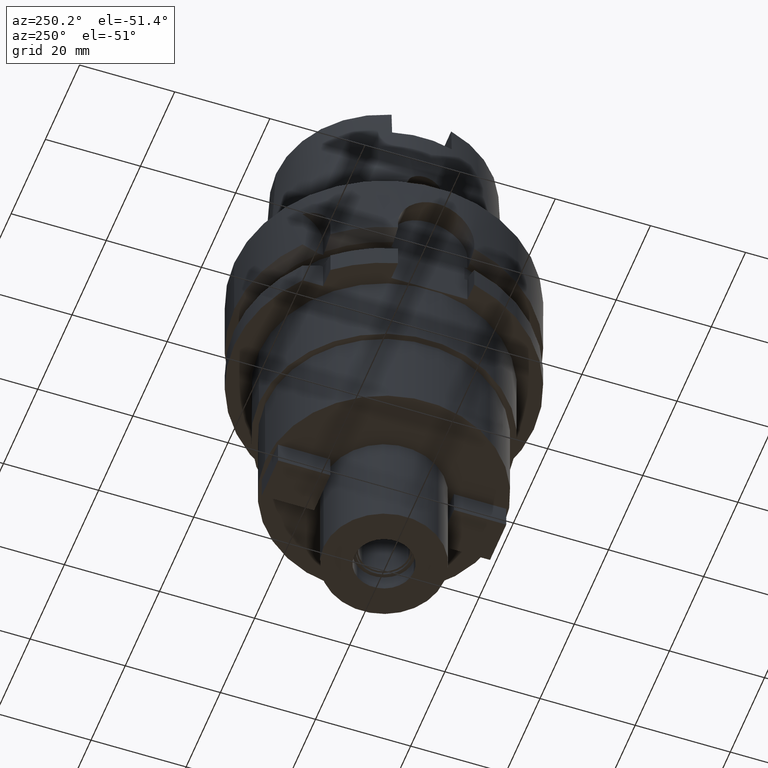
[diagram: clean part render]
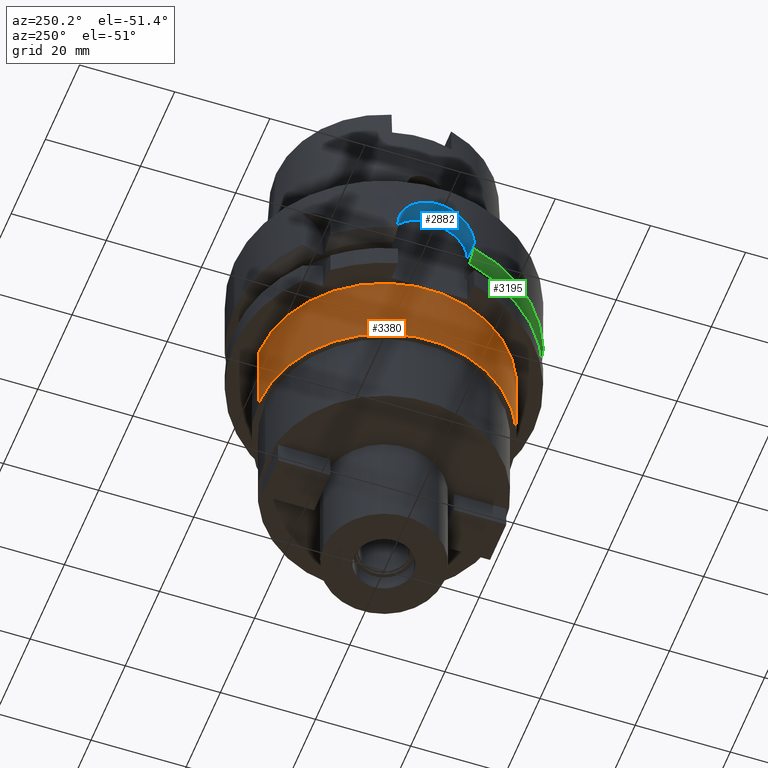
[diagram: same view with three faces highlighted in distinct colors, each labeled with its STEP entity id]
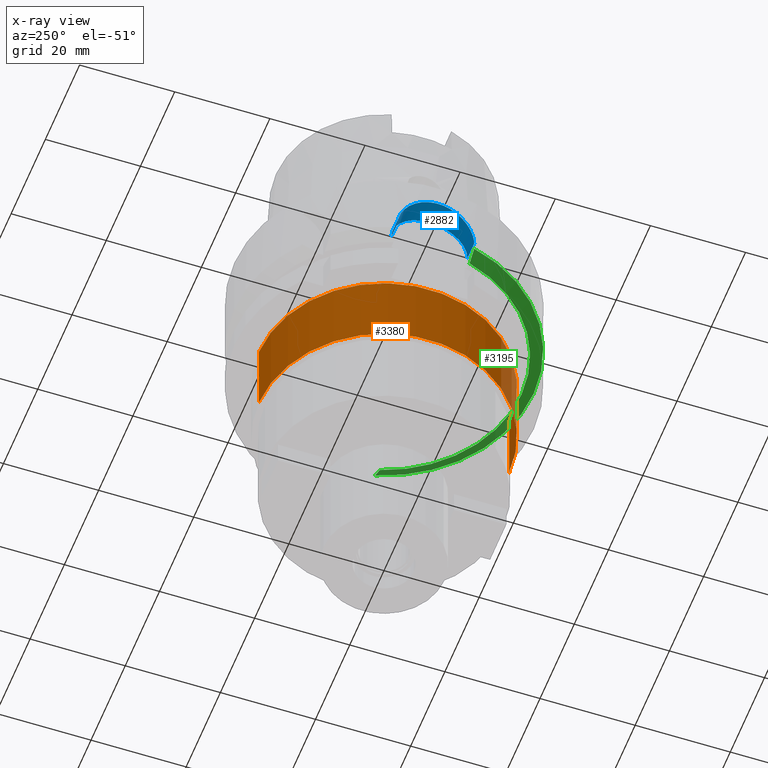
[diagram: x-ray of the same camera — body ghosted, the three highlighted faces saturated]
A machine part, auxiliary view with three faces highlighted in distinct colors.
The next image is the same camera in x-ray (body ghosted, the three faces saturated) — at least one of them is partly hidden behind the body in this view.
Their STEP definitions:

[orange] entity #3380 — the highlighted cylindrical surface (partial cylindrical patch) has radius 26.3 mm, axis along (0, 0, 1).
#764=CARTESIAN_POINT('',(0.E0,0.E0,-2.6E1));
#765=DIRECTION('',(0.E0,0.E0,-1.E0));
#766=DIRECTION('',(0.E0,-1.E0,0.E0));
#767=AXIS2_PLACEMENT_3D('',#764,#765,#766);
#1304=DIRECTION('',(0.E0,0.E0,-1.E0));
#1305=VECTOR('',#1304,1.6E1);
#1306=CARTESIAN_POINT('',(0.E0,-2.63E1,-2.6E1));
#1307=LINE('',#1306,#1305);
#1311=DIRECTION('',(0.E0,0.E0,-1.E0));
#1312=VECTOR('',#1311,1.6E1);
#1313=CARTESIAN_POINT('',(0.E0,2.63E1,-2.6E1));
#1314=LINE('',#1313,#1312);
#1326=CARTESIAN_POINT('',(0.E0,0.E0,-4.2E1));
#1327=DIRECTION('',(0.E0,0.E0,1.E0));
#1328=DIRECTION('',(0.E0,1.E0,0.E0));
#1329=AXIS2_PLACEMENT_3D('',#1326,#1327,#1328);
#2330=CARTESIAN_POINT('',(0.E0,-2.63E1,-4.2E1));
#2331=CARTESIAN_POINT('',(0.E0,2.63E1,-4.2E1));
#2332=VERTEX_POINT('',#2330);
#2333=VERTEX_POINT('',#2331);
#2334=CARTESIAN_POINT('',(0.E0,2.63E1,-2.6E1));
#2335=VERTEX_POINT('',#2334);
#2336=CARTESIAN_POINT('',(0.E0,-2.63E1,-2.6E1));
#2337=VERTEX_POINT('',#2336);
#3366=CARTESIAN_POINT('',(0.E0,0.E0,-8.77E1));
#3367=DIRECTION('',(0.E0,0.E0,1.E0));
#3368=DIRECTION('',(0.E0,1.E0,0.E0));
#3369=AXIS2_PLACEMENT_3D('',#3366,#3367,#3368);
#3370=CYLINDRICAL_SURFACE('',#3369,2.63E1);
#3372=ORIENTED_EDGE('',*,*,#3371,.F.);
#3373=ORIENTED_EDGE('',*,*,#2982,.F.);
#3375=ORIENTED_EDGE('',*,*,#3374,.T.);
#3377=ORIENTED_EDGE('',*,*,#3376,.F.);
#3378=EDGE_LOOP('',(#3372,#3373,#3375,#3377));
#3379=FACE_OUTER_BOUND('',#3378,.F.);
#768=CIRCLE('',#767,2.63E1);
#1330=CIRCLE('',#1329,2.63E1);
#2982=EDGE_CURVE('',#2337,#2335,#768,.T.);
#3371=EDGE_CURVE('',#2335,#2333,#1314,.T.);
#3374=EDGE_CURVE('',#2337,#2332,#1307,.T.);
#3376=EDGE_CURVE('',#2333,#2332,#1330,.T.);
#3380=ADVANCED_FACE('',(#3379),#3370,.T.);

[blue] entity #2882 — the highlighted cylindrical surface (partial cylindrical patch) has radius 8 mm, axis along (1, 0, 0).
#570=CARTESIAN_POINT('',(-3.046719547316E1,8.E0,-1.3E1));
#571=CARTESIAN_POINT('',(-3.046719547316E1,8.E0,-1.245224003607E1));
#572=CARTESIAN_POINT('',(-3.049727303426E1,7.887058323595E0,-1.135073918024E1));
#573=CARTESIAN_POINT('',(-3.062689466042E1,7.375462100777E0,-9.752102770187E0));
#574=CARTESIAN_POINT('',(-3.082074453848E1,6.532773635205E0,-8.278876849185E0));
#575=CARTESIAN_POINT('',(-3.104430623296E1,5.390237385849E0,-7.006966913826E0));
#576=CARTESIAN_POINT('',(-3.125563068838E1,4.008870959063E0,-6.008196302168E0));
#577=CARTESIAN_POINT('',(-3.141705811214E1,2.464778611533E0,-5.328000548067E0));
#578=CARTESIAN_POINT('',(-3.150356827909E1,8.304197450127E-1,
-4.985634634504E0));
#579=CARTESIAN_POINT('',(-3.150352683520E1,-8.321668194072E-1,
-4.985822563404E0));
#580=CARTESIAN_POINT('',(-3.141693342003E1,-2.466337132340E0,
-5.328506065960E0));
#581=CARTESIAN_POINT('',(-3.125544521441E1,-4.010327446364E0,
-6.009023176732E0));
#582=CARTESIAN_POINT('',(-3.104408251685E1,-5.391520358267E0,
-7.008128874597E0));
#583=CARTESIAN_POINT('',(-3.082053940857E1,-6.533720827611E0,
-8.280182636067E0));
#584=CARTESIAN_POINT('',(-3.062672186404E1,-7.376197431370E0,
-9.753750452463E0));
#585=CARTESIAN_POINT('',(-3.049718861268E1,-7.887319828262E0,
-1.135225951337E1));
#586=CARTESIAN_POINT('',(-3.046719547316E1,-8.E0,-1.245284904069E1));
#587=CARTESIAN_POINT('',(-3.046719547316E1,-8.E0,-1.3E1));
#592=DIRECTION('',(1.E0,8.686570378874E-14,0.E0));
#593=VECTOR('',#592,3.967195473161E0);
#594=CARTESIAN_POINT('',(-3.046719547316E1,-8.E0,-1.3E1));
#595=LINE('',#594,#593);
#599=DIRECTION('',(-1.E0,8.776122650821E-14,0.E0));
#600=VECTOR('',#599,3.967195473161E0);
#601=CARTESIAN_POINT('',(-2.65E1,8.E0,-1.3E1));
#602=LINE('',#601,#600);
#673=CARTESIAN_POINT('',(-2.65E1,0.E0,-1.3E1));
#674=DIRECTION('',(1.E0,0.E0,0.E0));
#675=DIRECTION('',(0.E0,1.E0,0.E0));
#676=AXIS2_PLACEMENT_3D('',#673,#674,#675);
#681=CARTESIAN_POINT('',(-2.65E1,0.E0,-1.3E1));
#682=DIRECTION('',(1.E0,0.E0,0.E0));
#683=DIRECTION('',(0.E0,0.E0,1.E0));
#684=AXIS2_PLACEMENT_3D('',#681,#682,#683);
#2400=CARTESIAN_POINT('',(-2.65E1,-8.E0,-1.3E1));
#2401=VERTEX_POINT('',#2400);
#2402=CARTESIAN_POINT('',(-3.046719547316E1,-8.E0,-1.3E1));
#2403=VERTEX_POINT('',#2402);
#2414=CARTESIAN_POINT('',(-2.65E1,8.E0,-1.3E1));
#2415=VERTEX_POINT('',#2414);
#2416=CARTESIAN_POINT('',(-2.65E1,0.E0,-5.E0));
#2417=VERTEX_POINT('',#2416);
#2426=CARTESIAN_POINT('',(-3.046719547316E1,8.E0,-1.3E1));
#2427=VERTEX_POINT('',#2426);
#2867=CARTESIAN_POINT('',(-3.15E1,0.E0,-1.3E1));
#2868=DIRECTION('',(1.E0,0.E0,0.E0));
#2869=DIRECTION('',(0.E0,0.E0,1.E0));
#2870=AXIS2_PLACEMENT_3D('',#2867,#2868,#2869);
#2871=CYLINDRICAL_SURFACE('',#2870,8.E0);
#2872=ORIENTED_EDGE('',*,*,#2754,.T.);
#2874=ORIENTED_EDGE('',*,*,#2873,.T.);
#2876=ORIENTED_EDGE('',*,*,#2875,.F.);
#2878=ORIENTED_EDGE('',*,*,#2877,.F.);
#2879=ORIENTED_EDGE('',*,*,#2860,.T.);
#2880=EDGE_LOOP('',(#2872,#2874,#2876,#2878,#2879));
#2881=FACE_OUTER_BOUND('',#2880,.F.);
#588=B_SPLINE_CURVE_WITH_KNOTS('',3,(#570,#571,#572,#573,#574,#575,#576,#577,
#578,#579,#580,#581,#582,#583,#584,#585,#586,#587),.UNSPECIFIED.,.F.,.F.,(4,1,1,
1,1,1,1,1,1,1,1,1,1,1,1,4),(0.E0,6.666666666667E-2,1.333333333333E-1,2.E-1,
2.666666666667E-1,3.333333333333E-1,4.E-1,4.666666666667E-1,5.333333333333E-1,
6.E-1,6.666666666667E-1,7.333333333333E-1,8.E-1,8.666666666667E-1,
9.333333333333E-1,1.E0),.UNSPECIFIED.);
#677=CIRCLE('',#676,8.E0);
#685=CIRCLE('',#684,8.E0);
#2754=EDGE_CURVE('',#2427,#2403,#588,.T.);
#2860=EDGE_CURVE('',#2415,#2427,#602,.T.);
#2873=EDGE_CURVE('',#2403,#2401,#595,.T.);
#2875=EDGE_CURVE('',#2417,#2401,#685,.T.);
#2877=EDGE_CURVE('',#2415,#2417,#677,.T.);
#2882=ADVANCED_FACE('',(#2881),#2871,.F.);

[green] entity #3195 — the highlighted conical surface has half-angle 60 deg.
#620=CARTESIAN_POINT('',(0.E0,0.E0,-1.6125E1));
#621=DIRECTION('',(0.E0,0.E0,1.E0));
#622=DIRECTION('',(-9.609161312155E-1,-2.768396445054E-1,0.E0));
#623=AXIS2_PLACEMENT_3D('',#620,#621,#622);
#628=CARTESIAN_POINT('',(0.E0,0.E0,-1.6125E1));
#629=DIRECTION('',(0.E0,0.E0,1.E0));
#630=DIRECTION('',(0.E0,-1.E0,0.E0));
#631=AXIS2_PLACEMENT_3D('',#628,#629,#630);
#1014=CARTESIAN_POINT('',(-2.776816326972E1,-8.000000141680E0,-1.6125E1));
#1015=CARTESIAN_POINT('',(-2.806112173908E1,-8.000000141680E0,
-1.596247098150E1));
#1016=CARTESIAN_POINT('',(-2.865165076054E1,-7.999999997108E0,
-1.563446133171E1));
#1017=CARTESIAN_POINT('',(-2.955132031112E1,-7.999999797603E0,
-1.513361282590E1));
#1018=CARTESIAN_POINT('',(-3.016035495749E1,-8.000000474188E0,
-1.479384256134E1));
#1019=CARTESIAN_POINT('',(-3.046719534865E1,-8.000000474188E0,
-1.462249662062E1));
#1024=CARTESIAN_POINT('',(0.E0,0.E0,-1.462250092524E1));
#1025=DIRECTION('',(0.E0,0.E0,1.E0));
#1026=DIRECTION('',(-9.672125547036E-1,-2.539682539683E-1,0.E0));
#1027=AXIS2_PLACEMENT_3D('',#1024,#1025,#1026);
#1032=CARTESIAN_POINT('',(0.E0,0.E0,-1.462250092524E1));
#1033=DIRECTION('',(0.E0,0.E0,1.E0));
#1034=DIRECTION('',(0.E0,-1.E0,0.E0));
#1035=AXIS2_PLACEMENT_3D('',#1032,#1033,#1034);
#1040=CARTESIAN_POINT('',(3.018691773992E1,-8.999999853532E0,
-1.462250210654E1));
#1041=CARTESIAN_POINT('',(2.987627297048E1,-8.999999853532E0,
-1.479437668138E1));
#1042=CARTESIAN_POINT('',(2.926011680501E1,-8.999999971026E0,
-1.513485178808E1));
#1043=CARTESIAN_POINT('',(2.835127314684E1,-9.000000321112E0,
-1.563570008090E1));
#1044=CARTESIAN_POINT('',(2.775562024089E1,-8.999999270055E0,
-1.596301174891E1));
#1045=CARTESIAN_POINT('',(2.746036357337E1,-8.999999270055E0,-1.6125E1));
#2397=CARTESIAN_POINT('',(-2.776816326972E1,-8.000000141680E0,-1.6125E1));
#2399=VERTEX_POINT('',#2397);
#2404=CARTESIAN_POINT('',(-3.046719534865E1,-8.000000474188E0,
-1.462249662062E1));
#2405=VERTEX_POINT('',#2404);
#2466=CARTESIAN_POINT('',(2.746036357337E1,-8.999999270055E0,-1.6125E1));
#2467=VERTEX_POINT('',#2466);
#2468=VERTEX_POINT('',#1040);
#2471=CARTESIAN_POINT('',(2.182569048097E-14,-2.889759526419E1,-1.6125E1));
#2472=VERTEX_POINT('',#2471);
#2479=CARTESIAN_POINT('',(0.E0,-3.15E1,-1.462250092524E1));
#2480=VERTEX_POINT('',#2479);
#3181=CARTESIAN_POINT('',(0.E0,0.E0,-1.537375046262E1));
#3182=DIRECTION('',(0.E0,0.E0,1.E0));
#3183=DIRECTION('',(0.E0,1.E0,0.E0));
#3184=AXIS2_PLACEMENT_3D('',#3181,#3182,#3183);
#3185=CONICAL_SURFACE('',#3184,3.019879763210E1,6.E1);
#3186=ORIENTED_EDGE('',*,*,#2894,.T.);
#3187=ORIENTED_EDGE('',*,*,#2750,.T.);
#3189=ORIENTED_EDGE('',*,*,#3188,.T.);
#3190=ORIENTED_EDGE('',*,*,#3171,.T.);
#3191=ORIENTED_EDGE('',*,*,#2909,.F.);
#3192=ORIENTED_EDGE('',*,*,#2907,.F.);
#3193=EDGE_LOOP('',(#3186,#3187,#3189,#3190,#3191,#3192));
#3194=FACE_OUTER_BOUND('',#3193,.F.);
#624=CIRCLE('',#623,2.889759526419E1);
#632=CIRCLE('',#631,2.889759526419E1);
#1020=B_SPLINE_CURVE_WITH_KNOTS('',3,(#1014,#1015,#1016,#1017,#1018,#1019),
.UNSPECIFIED.,.F.,.F.,(4,1,1,4),(0.E0,3.333333333333E-1,6.666666666667E-1,1.E0),
.UNSPECIFIED.);
#1028=CIRCLE('',#1027,3.15E1);
#1036=CIRCLE('',#1035,3.15E1);
#1046=B_SPLINE_CURVE_WITH_KNOTS('',3,(#1040,#1041,#1042,#1043,#1044,#1045),
.UNSPECIFIED.,.F.,.F.,(4,1,1,4),(0.E0,3.333333333333E-1,6.666666666667E-1,1.E0),
.UNSPECIFIED.);
#2750=EDGE_CURVE('',#2405,#2480,#1028,.T.);
#2894=EDGE_CURVE('',#2399,#2405,#1020,.T.);
#2907=EDGE_CURVE('',#2399,#2472,#624,.T.);
#2909=EDGE_CURVE('',#2472,#2467,#632,.T.);
#3171=EDGE_CURVE('',#2468,#2467,#1046,.T.);
#3188=EDGE_CURVE('',#2480,#2468,#1036,.T.);
#3195=ADVANCED_FACE('',(#3194),#3185,.T.);